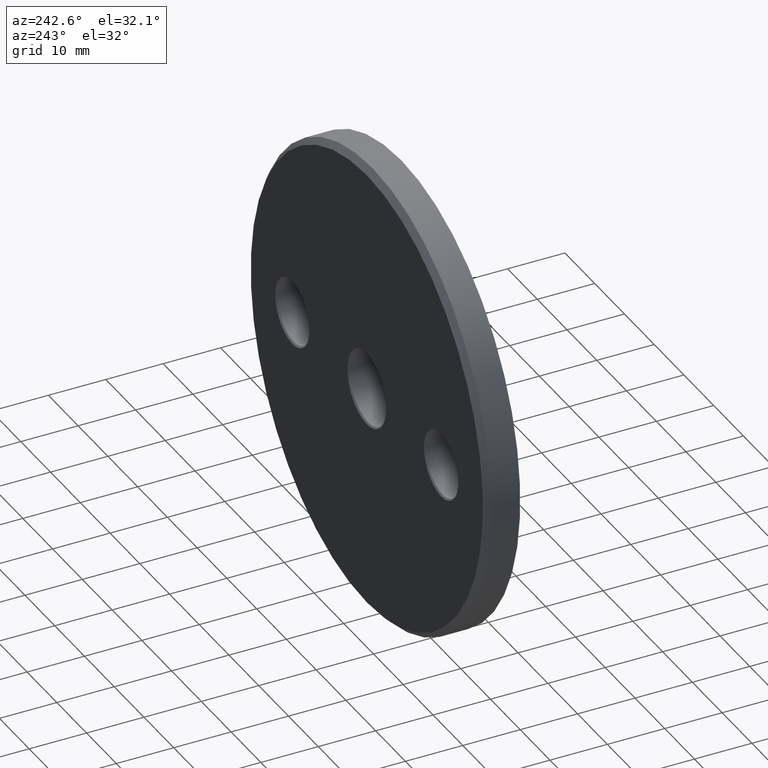
[diagram: clean part render]
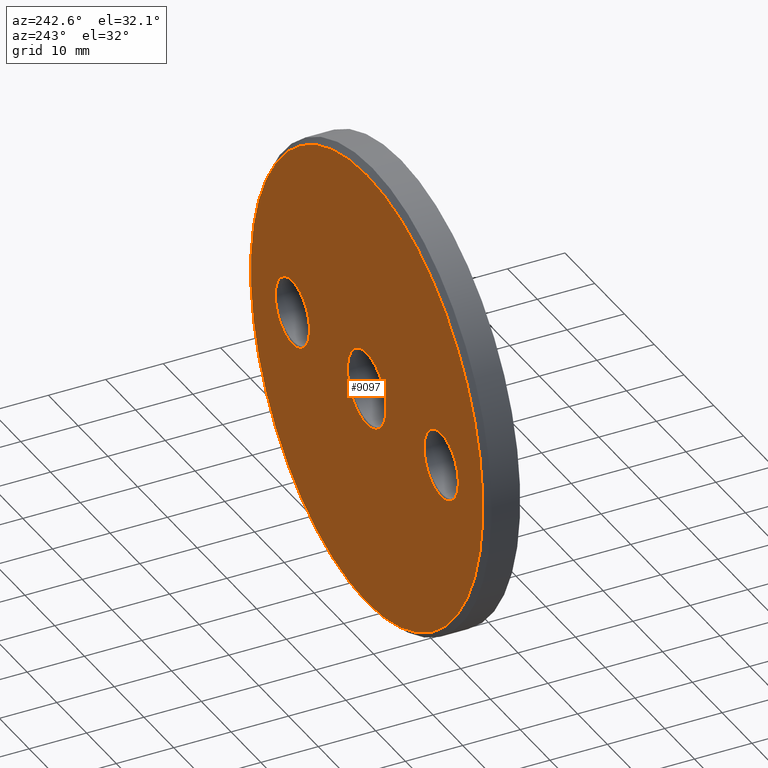
[diagram: same view with one face highlighted and labeled with its STEP entity id]
A machine part, auxiliary view. The second image highlights one B-rep face of the part: STEP entity #9097.
In plain terms, the highlighted planar face has unit normal (0, 1, 0).
Its self-contained STEP definition (entity closure, byte-faithful):
#132 = DIRECTION ( 'NONE',  ( 0.000000000000000000, 0.000000000000000000, 1.000000000000000000 ) ) ;
#218 = CARTESIAN_POINT ( 'NONE',  ( -25.00000000000000000, 6.000000000000000000, 0.000000000000000000 ) ) ;
#311 = EDGE_CURVE ( 'NONE', #7010, #11039, #6045, .T. ) ;
#551 = DIRECTION ( 'NONE',  ( 0.000000000000000000, 0.000000000000000000, 1.000000000000000000 ) ) ;
#799 = VERTEX_POINT ( 'NONE', #14405 ) ;
#968 = AXIS2_PLACEMENT_3D ( 'NONE', #2892, #11235, #6406 ) ;
#985 = CARTESIAN_POINT ( 'NONE',  ( 7.960204194457819143E-16, 6.000000000000000000, -6.500000000000019540 ) ) ;
#1311 = EDGE_CURVE ( 'NONE', #12964, #4628, #11223, .T. ) ;
#1317 = CIRCLE ( 'NONE', #14095, 39.00000000000003553 ) ;
#1355 = CARTESIAN_POINT ( 'NONE',  ( 4.837354856632047030E-15, 6.000000000000000000, 39.00000000000003553 ) ) ;
#1365 = CARTESIAN_POINT ( 'NONE',  ( 0.000000000000000000, 6.000000000000000000, 0.000000000000000000 ) ) ;
#1461 = CARTESIAN_POINT ( 'NONE',  ( 0.000000000000000000, 6.000000000000000000, 0.000000000000000000 ) ) ;
#2517 = CARTESIAN_POINT ( 'NONE',  ( 0.000000000000000000, 6.000000000000000000, 0.000000000000000000 ) ) ;
#2672 = FACE_OUTER_BOUND ( 'NONE', #11915, .T. ) ;
#2679 = EDGE_CURVE ( 'NONE', #7396, #799, #7446, .T. ) ;
#2762 = DIRECTION ( 'NONE',  ( 0.000000000000000000, 0.000000000000000000, 1.000000000000000000 ) ) ;
#2808 = CIRCLE ( 'NONE', #14461, 6.500000000000019540 ) ;
#2866 = DIRECTION ( 'NONE',  ( -0.000000000000000000, -1.000000000000000000, -0.000000000000000000 ) ) ;
#2892 = CARTESIAN_POINT ( 'NONE',  ( 25.00000000000000000, 6.000000000000000000, -6.123233995736766085E-15 ) ) ;
#3283 = ORIENTED_EDGE ( 'NONE', *, *, #2679, .T. ) ;
#3317 = DIRECTION ( 'NONE',  ( 0.000000000000000000, -0.000000000000000000, 1.000000000000000000 ) ) ;
#3590 = AXIS2_PLACEMENT_3D ( 'NONE', #5642, #15101, #3317 ) ;
#3655 = EDGE_CURVE ( 'NONE', #11646, #9250, #2808, .T. ) ;
#3791 = CARTESIAN_POINT ( 'NONE',  ( 0.000000000000000000, 6.000000000000000000, 0.000000000000000000 ) ) ;
#3862 = DIRECTION ( 'NONE',  ( -0.000000000000000000, -1.000000000000000000, -0.000000000000000000 ) ) ;
#4628 = VERTEX_POINT ( 'NONE', #7783 ) ;
#5049 = DIRECTION ( 'NONE',  ( -0.000000000000000000, -1.000000000000000000, -0.000000000000000000 ) ) ;
#5287 = FACE_BOUND ( 'NONE', #7920, .T. ) ;
#5638 = CARTESIAN_POINT ( 'NONE',  ( -25.00000000000000000, 6.000000000000000000, -5.749999999999991118 ) ) ;
#5642 = CARTESIAN_POINT ( 'NONE',  ( 0.000000000000000000, 6.000000000000000000, 0.000000000000000000 ) ) ;
#5687 = PLANE ( 'NONE',  #3590 ) ;
#5694 = ORIENTED_EDGE ( 'NONE', *, *, #13473, .T. ) ;
#6045 = CIRCLE ( 'NONE', #7829, 39.00000000000003553 ) ;
#6104 = EDGE_LOOP ( 'NONE', ( #10027, #15299 ) ) ;
#6108 = AXIS2_PLACEMENT_3D ( 'NONE', #7697, #10005, #10119 ) ;
#6406 = DIRECTION ( 'NONE',  ( 0.000000000000000000, 0.000000000000000000, 1.000000000000000000 ) ) ;
#6696 = ORIENTED_EDGE ( 'NONE', *, *, #14937, .T. ) ;
#7010 = VERTEX_POINT ( 'NONE', #10415 ) ;
#7180 = AXIS2_PLACEMENT_3D ( 'NONE', #1461, #11921, #14387 ) ;
#7396 = VERTEX_POINT ( 'NONE', #5638 ) ;
#7423 = DIRECTION ( 'NONE',  ( 0.000000000000000000, 1.000000000000000000, 0.000000000000000000 ) ) ;
#7446 = CIRCLE ( 'NONE', #11752, 5.749999999999991118 ) ;
#7620 = ORIENTED_EDGE ( 'NONE', *, *, #311, .T. ) ;
#7697 = CARTESIAN_POINT ( 'NONE',  ( 25.00000000000000000, 6.000000000000000000, -6.123233995736766085E-15 ) ) ;
#7783 = CARTESIAN_POINT ( 'NONE',  ( 25.00000000000000000, 6.000000000000000000, -5.750000000000024869 ) ) ;
#7829 = AXIS2_PLACEMENT_3D ( 'NONE', #3791, #7423, #2762 ) ;
#7920 = EDGE_LOOP ( 'NONE', ( #5694, #3283 ) ) ;
#8707 = EDGE_CURVE ( 'NONE', #4628, #12964, #11433, .T. ) ;
#8749 = CIRCLE ( 'NONE', #7180, 6.500000000000019540 ) ;
#9097 = ADVANCED_FACE ( 'NONE', ( #2672, #12551, #15201, #5287 ), #5687, .T. ) ;
#9250 = VERTEX_POINT ( 'NONE', #12380 ) ;
#9466 = DIRECTION ( 'NONE',  ( 0.000000000000000000, 1.000000000000000000, 0.000000000000000000 ) ) ;
#9732 = CARTESIAN_POINT ( 'NONE',  ( 25.00000000000000000, 6.000000000000000000, 5.750000000000013323 ) ) ;
#9798 = DIRECTION ( 'NONE',  ( 0.000000000000000000, 0.000000000000000000, 1.000000000000000000 ) ) ;
#9997 = CARTESIAN_POINT ( 'NONE',  ( -25.00000000000000000, 6.000000000000000000, 0.000000000000000000 ) ) ;
#10005 = DIRECTION ( 'NONE',  ( -0.000000000000000000, -1.000000000000000000, -0.000000000000000000 ) ) ;
#10027 = ORIENTED_EDGE ( 'NONE', *, *, #1311, .T. ) ;
#10119 = DIRECTION ( 'NONE',  ( 0.000000000000000000, 0.000000000000000000, 1.000000000000000000 ) ) ;
#10415 = CARTESIAN_POINT ( 'NONE',  ( 0.000000000000000000, 6.000000000000000000, -39.00000000000003553 ) ) ;
#11039 = VERTEX_POINT ( 'NONE', #1355 ) ;
#11223 = CIRCLE ( 'NONE', #968, 5.750000000000018652 ) ;
#11235 = DIRECTION ( 'NONE',  ( -0.000000000000000000, -1.000000000000000000, -0.000000000000000000 ) ) ;
#11433 = CIRCLE ( 'NONE', #6108, 5.750000000000018652 ) ;
#11646 = VERTEX_POINT ( 'NONE', #985 ) ;
#11724 = CIRCLE ( 'NONE', #11889, 5.749999999999991118 ) ;
#11752 = AXIS2_PLACEMENT_3D ( 'NONE', #218, #3862, #9798 ) ;
#11884 = DIRECTION ( 'NONE',  ( 0.000000000000000000, 0.000000000000000000, 1.000000000000000000 ) ) ;
#11889 = AXIS2_PLACEMENT_3D ( 'NONE', #9997, #2866, #551 ) ;
#11915 = EDGE_LOOP ( 'NONE', ( #7620, #6696 ) ) ;
#11921 = DIRECTION ( 'NONE',  ( -0.000000000000000000, -1.000000000000000000, -0.000000000000000000 ) ) ;
#12380 = CARTESIAN_POINT ( 'NONE',  ( 0.000000000000000000, 6.000000000000000000, 6.500000000000019540 ) ) ;
#12407 = EDGE_CURVE ( 'NONE', #9250, #11646, #8749, .T. ) ;
#12551 = FACE_BOUND ( 'NONE', #15000, .T. ) ;
#12964 = VERTEX_POINT ( 'NONE', #9732 ) ;
#13473 = EDGE_CURVE ( 'NONE', #799, #7396, #11724, .T. ) ;
#13742 = ORIENTED_EDGE ( 'NONE', *, *, #3655, .T. ) ;
#14095 = AXIS2_PLACEMENT_3D ( 'NONE', #2517, #9466, #11884 ) ;
#14387 = DIRECTION ( 'NONE',  ( 0.000000000000000000, 0.000000000000000000, 1.000000000000000000 ) ) ;
#14405 = CARTESIAN_POINT ( 'NONE',  ( -25.00000000000000000, 6.000000000000000000, 5.749999999999991118 ) ) ;
#14461 = AXIS2_PLACEMENT_3D ( 'NONE', #1365, #5049, #132 ) ;
#14937 = EDGE_CURVE ( 'NONE', #11039, #7010, #1317, .T. ) ;
#15000 = EDGE_LOOP ( 'NONE', ( #15343, #13742 ) ) ;
#15101 = DIRECTION ( 'NONE',  ( 0.000000000000000000, 1.000000000000000000, 0.000000000000000000 ) ) ;
#15201 = FACE_BOUND ( 'NONE', #6104, .T. ) ;
#15299 = ORIENTED_EDGE ( 'NONE', *, *, #8707, .T. ) ;
#15343 = ORIENTED_EDGE ( 'NONE', *, *, #12407, .T. ) ;